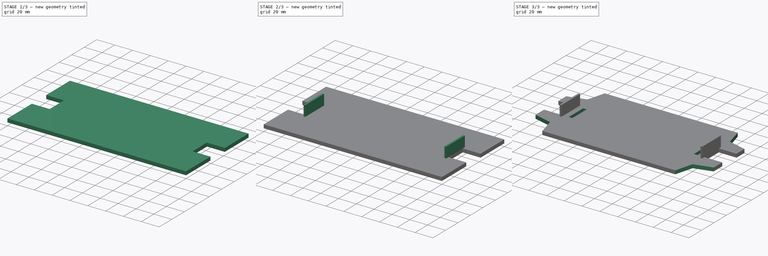
[diagram: build sequence overview — one tinted view per stage of 3, left to right]
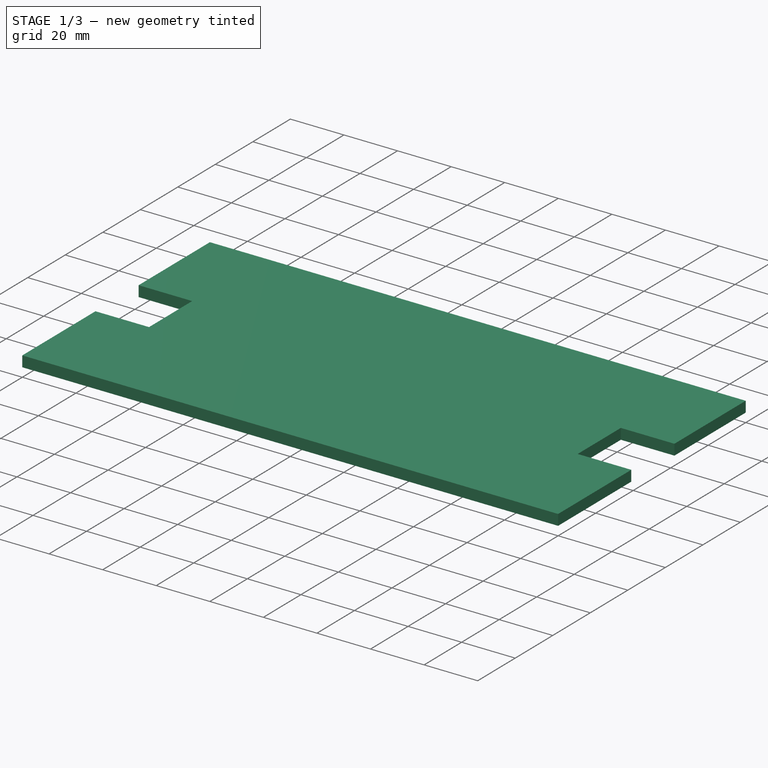
[diagram: stage 1 of 3 — iso view after this stage's code; geometry added in this stage tinted green]
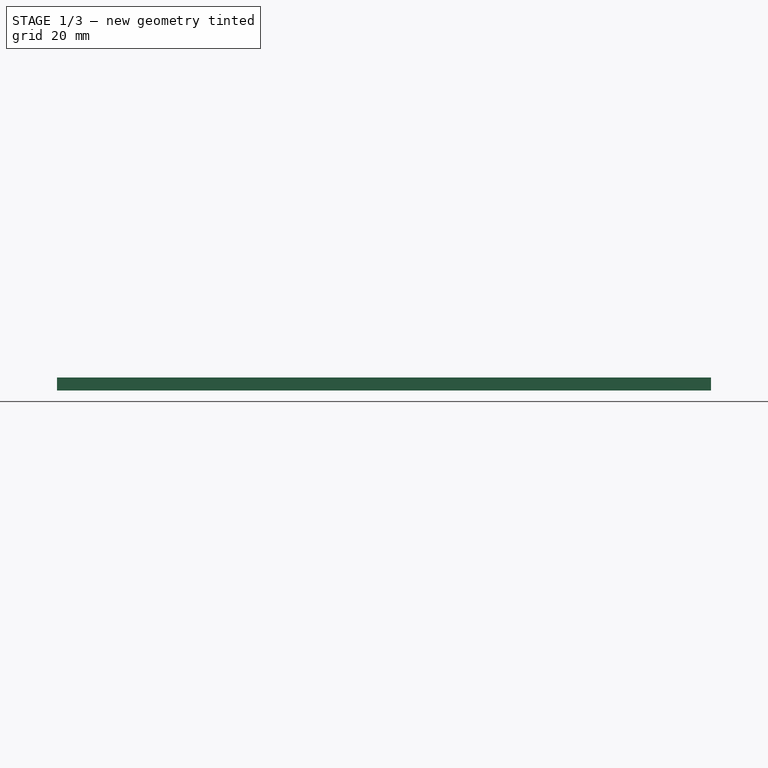
[diagram: stage 1 of 3 — front view after this stage's code; geometry added in this stage tinted green]
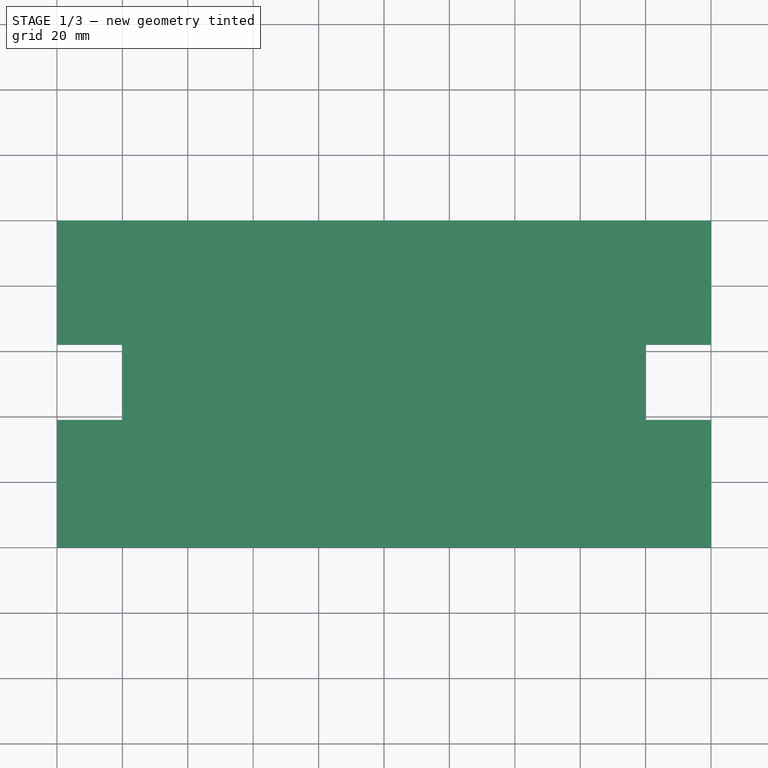
[diagram: stage 1 of 3 — top view after this stage's code; geometry added in this stage tinted green]
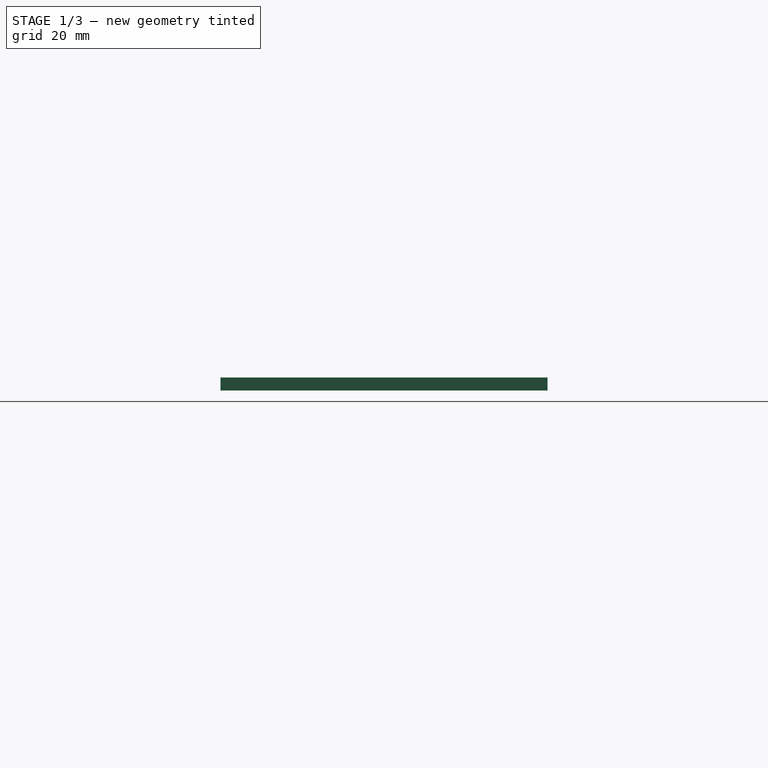
[diagram: stage 1 of 3 — right view after this stage's code; geometry added in this stage tinted green]
FCSTD DOCUMENT  (FreeCAD 0.19R24291 (Git))
Label: Estrcturapendulo
License: All rights reserved
LicenseURL: http://en.wikipedia.org/wiki/All_rights_reserved
objects: Sketcher::SketchObject×14, PartDesign::Plane×6, PartDesign::Pocket×5, App::MeasureDistance×4, PartDesign::Pad×3, PartDesign::Body×1
note: 37 computed .brp shape members not serialized (recipe doc carries the construction recipe); baked Part::Feature solids carry a one-line shape summary decoded from their .brp

FEATURE [Sketcher::SketchObject] Sketch
  FullyConstrained = true
  MapMode = 5
  Support = -> [XY_Plane]
  sketch-geometry (4):
    g0: LineSegment StartX=0 StartY=0 StartZ=0 EndX=200 EndY=0 EndZ=0
    g1: LineSegment StartX=200 StartY=0 StartZ=0 EndX=200 EndY=100 EndZ=0
    g2: LineSegment StartX=200 StartY=100 StartZ=0 EndX=0 EndY=100 EndZ=0
    g3: LineSegment StartX=0 StartY=100 StartZ=0 EndX=0 EndY=0 EndZ=0
  constraints (11):
    c: Coincident(g0,g1)
    c: Coincident(g1,g2)
    c: Coincident(g2,g3)
    c: Coincident(g3,g0)
    c: Horizontal(g0)
    c: Horizontal(g2)
    c: Vertical(g1)
    c: Vertical(g3)
    c: Coincident(g0,g-1)
    c: Distance(g1) = 100
    c: Distance(g2) = 200
FEATURE [PartDesign::Pad] Pad
  Direction = (1,1,1)
  Length = 4
  Length2 = 100
  Profile = -> Sketch
  Refine = true
  Type = 0
FEATURE [PartDesign::Plane] DatumPlane
  Length = 140.811
  MapMode = 5
  Placement = pos=(0,0,0) rot=(0.57735,-0.57735,-0.57735;2.0944rad)
  ResizeMode = 0
  Support = -> [Pad]
  Width = 65.8114
FEATURE [Sketcher::SketchObject] Sketch001
  FullyConstrained = false
  MapMode = 5
  Placement = pos=(0,0,0) rot=(0.57735,-0.57735,-0.57735;2.0944rad)
  Support = -> [DatumPlane]
  sketch-geometry (4):
    g0: LineSegment StartX=-39 StartY=0 StartZ=0 EndX=-62 EndY=0 EndZ=0
    g1: LineSegment StartX=-62 StartY=0 StartZ=0 EndX=-62 EndY=21.4556 EndZ=0
    g2: LineSegment StartX=-62 StartY=21.4556 StartZ=0 EndX=-39 EndY=21.4556 EndZ=0
    g3: LineSegment StartX=-39 StartY=21.4556 StartZ=0 EndX=-39 EndY=0 EndZ=0
  constraints (11):
    c: Coincident(g0,g1)
    c: Coincident(g1,g2)
    c: Coincident(g2,g3)
    c: Coincident(g3,g0)
    c: Horizontal(g0)
    c: Horizontal(g2)
    c: Vertical(g1)
    c: Vertical(g3)
    c: PointOnObject(g0,g-1)
    c: DistanceX(g0,g-1) = 39
    c: DistanceX(g2,g2) = 23
FEATURE [PartDesign::Pocket] Pocket
  BaseFeature = -> Pad
  Length = 20
  Length2 = 100
  Profile = -> Sketch001
  Refine = true
  Type = 0
FEATURE [PartDesign::Plane] DatumPlane001
  Length = 140.811
  MapMode = 5
  Placement = pos=(200,0,0) rot=(0.57735,0.57735,0.57735;2.0944rad)
  ResizeMode = 0
  Support = -> [Pocket]
  Width = 65.8114
FEATURE [Sketcher::SketchObject] Sketch002
  FullyConstrained = false
  MapMode = 5
  Placement = pos=(200,0,0) rot=(0.57735,0.57735,0.57735;2.0944rad)
  Support = -> [DatumPlane001]
  sketch-geometry (4):
    g0: LineSegment StartX=39 StartY=0 StartZ=0 EndX=62 EndY=0 EndZ=0
    g1: LineSegment StartX=62 StartY=0 StartZ=0 EndX=62 EndY=19.8713 EndZ=0
    g2: LineSegment StartX=62 StartY=19.8713 StartZ=0 EndX=39 EndY=19.8713 EndZ=0
    g3: LineSegment StartX=39 StartY=19.8713 StartZ=0 EndX=39 EndY=0 EndZ=0
  constraints (11):
    c: Coincident(g0,g1)
    c: Coincident(g1,g2)
    c: Coincident(g2,g3)
    c: Coincident(g3,g0)
    c: Horizontal(g0)
    c: Horizontal(g2)
    c: Vertical(g1)
    c: Vertical(g3)
    c: PointOnObject(g0,g-1)
    c: DistanceX(g-1,g0) = 39
    c: DistanceX(g2,g2) = 23
FEATURE [PartDesign::Pocket] Pocket001
  BaseFeature = -> Pocket
  Length = 20
  Length2 = 100
  Profile = -> Sketch002
  Refine = true
  Type = 0
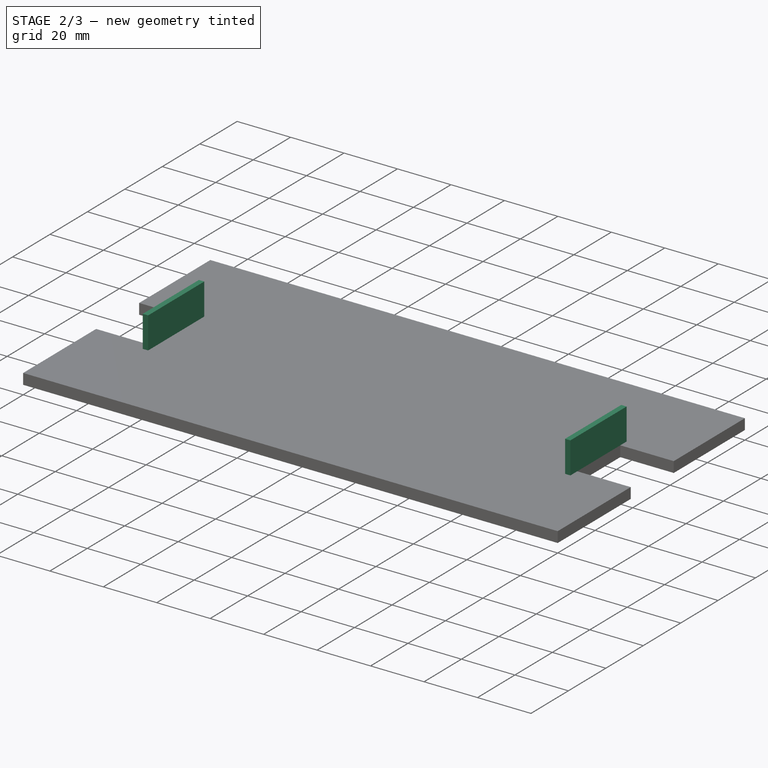
[diagram: stage 2 of 3 — iso view after this stage's code; geometry added in this stage tinted green]
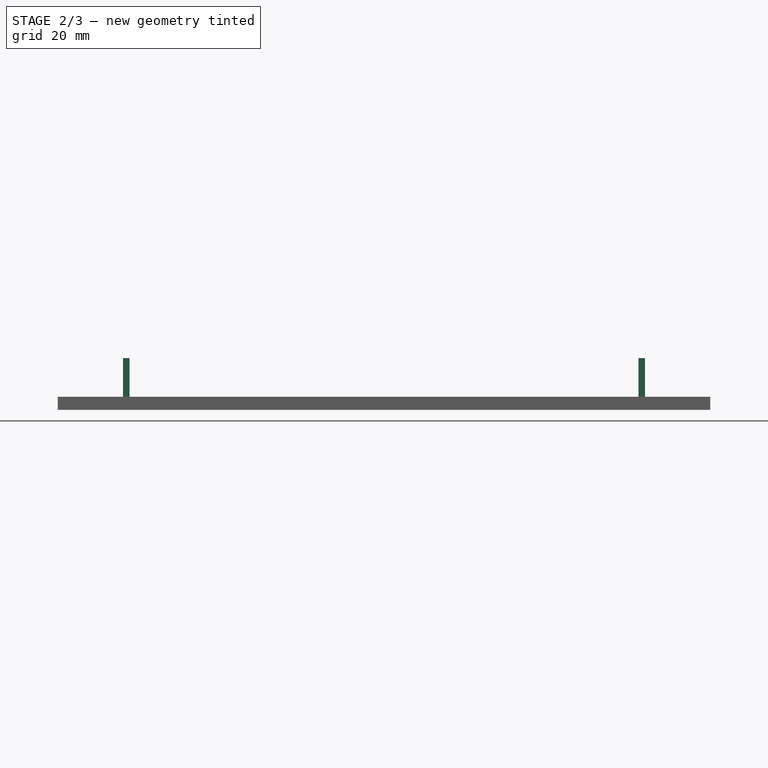
[diagram: stage 2 of 3 — front view after this stage's code; geometry added in this stage tinted green]
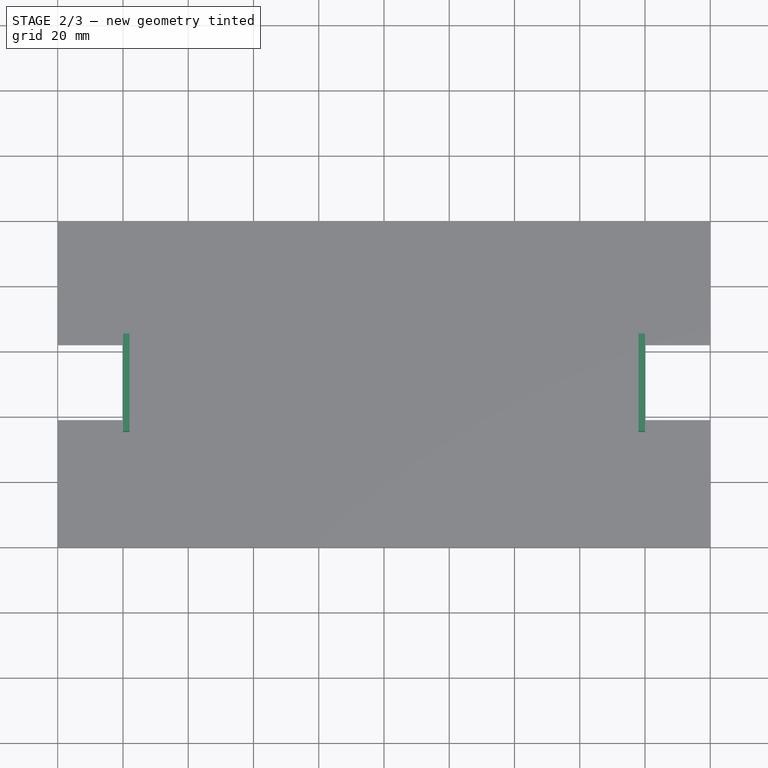
[diagram: stage 2 of 3 — top view after this stage's code; geometry added in this stage tinted green]
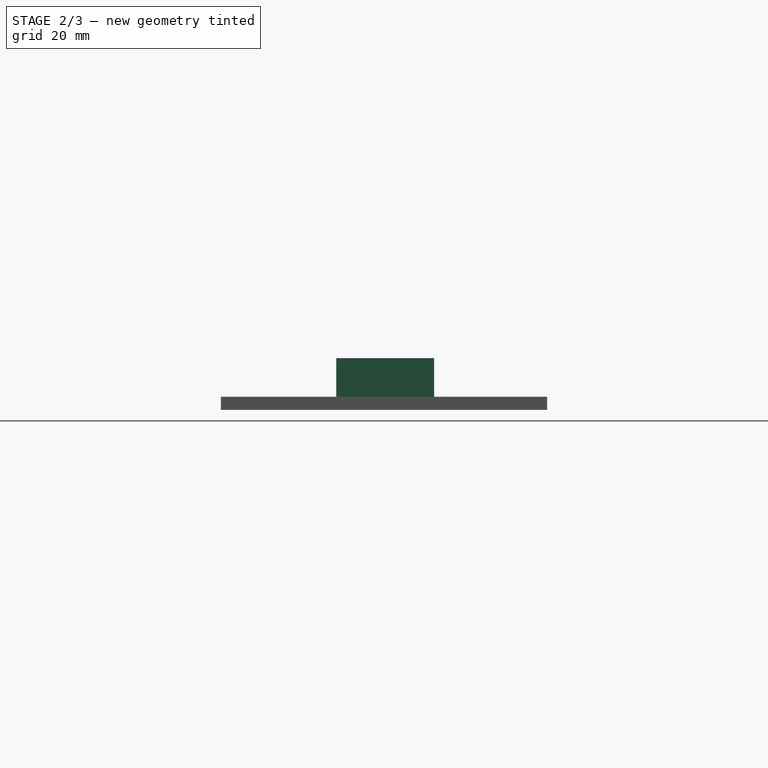
[diagram: stage 2 of 3 — right view after this stage's code; geometry added in this stage tinted green]
FEATURE [Sketcher::SketchObject] Sketch003
  FullyConstrained = false
  MapMode = 5
  Placement = pos=(180,0,0) rot=(0.57735,0.57735,0.57735;2.0944rad)
  sketch-geometry (4):
    g0: LineSegment StartX=38.9994 StartY=0 StartZ=0 EndX=62.1269 EndY=0 EndZ=0
    g1: LineSegment StartX=62.1269 StartY=0 StartZ=0 EndX=62.1269 EndY=11.3604 EndZ=0
    g2: LineSegment StartX=62.1269 StartY=11.3604 StartZ=0 EndX=38.9994 EndY=11.3604 EndZ=0
    g3: LineSegment StartX=38.9994 StartY=11.3604 StartZ=0 EndX=38.9994 EndY=0 EndZ=0
  constraints (10):
    c: Coincident(g0,g1)
    c: Coincident(g1,g2)
    c: Coincident(g2,g3)
    c: Coincident(g3,g0)
    c: Horizontal(g0)
    c: Horizontal(g2)
    c: Vertical(g1)
    c: Vertical(g3)
    c: PointOnObject(g0,g-1)
    c: DistanceX(g2,g2) = 23.1276
FEATURE [Sketcher::SketchObject] Sketch004
  FullyConstrained = true
  MapMode = 5
  Placement = pos=(180,0,0) rot=(0.57735,0.57735,0.57735;2.0944rad)
FEATURE [PartDesign::Plane] DatumPlane002
  Length = 140.811
  MapMode = 5
  Placement = pos=(180,0,0) rot=(0.57735,0.57735,0.57735;2.0944rad)
  ResizeMode = 0
  Support = -> [Pocket001]
  Width = 65.8114
FEATURE [Sketcher::SketchObject] Sketch005
  FullyConstrained = false
  MapMode = 5
  Placement = pos=(180,0,0) rot=(0.57735,0.57735,0.57735;2.0944rad)
  Support = -> [DatumPlane002]
  sketch-geometry (6):
    g0: GeomPoint X=38.8577 Y=3.99901 Z=0
    g1: GeomPoint X=61.8577 Y=3.99997 Z=0
    g2: LineSegment StartX=35.3577 StartY=3.99271 StartZ=0 EndX=65.3577 EndY=3.99271 EndZ=0
    g3: LineSegment StartX=65.3577 StartY=3.99271 StartZ=0 EndX=65.3577 EndY=15.8397 EndZ=0
    g4: LineSegment StartX=65.3577 StartY=15.8397 StartZ=0 EndX=35.3577 EndY=15.8397 EndZ=0
    g5: LineSegment StartX=35.3577 StartY=15.8397 StartZ=0 EndX=35.3577 EndY=3.99271 EndZ=0
  constraints (11):
    c: Coincident(g2,g3)
    c: Coincident(g3,g4)
    c: Coincident(g4,g5)
    c: Coincident(g5,g2)
    c: Horizontal(g2)
    c: Horizontal(g4)
    c: Vertical(g3)
    c: Vertical(g5)
    c: DistanceX(g4,g4) = 30
    c: DistanceX(g2,g0) = 3.5
    c: DistanceX(g1,g2) = 3.5
FEATURE [Sketcher::SketchObject] Sketch006
  FullyConstrained = true
  MapMode = 5
  Placement = pos=(180,0,0) rot=(0.57735,0.57735,0.57735;2.0944rad)
  Support = -> [DatumPlane002]
FEATURE [PartDesign::Pad] Pad001
  BaseFeature = -> Pocket001
  Direction = (1,1,1)
  Length = 2
  Length2 = 100
  Profile = -> Sketch005
  Refine = true
  Reversed = true
  Type = 0
FEATURE [PartDesign::Plane] DatumPlane003
  Length = 140.811
  MapMode = 5
  Placement = pos=(20,0,0) rot=(0.57735,-0.57735,-0.57735;2.0944rad)
  ResizeMode = 0
  Support = -> [Pad001]
  Width = 65.8114
FEATURE [Sketcher::SketchObject] Sketch007
  FullyConstrained = false
  MapMode = 5
  Placement = pos=(20,0,0) rot=(0.57735,-0.57735,-0.57735;2.0944rad)
  Support = -> [DatumPlane003]
  sketch-geometry (6):
    g0: GeomPoint X=-61.8577 Y=3.99983 Z=0
    g1: GeomPoint X=-38.8577 Y=3.99997 Z=0
    g2: LineSegment StartX=-65.3577 StartY=4 StartZ=0 EndX=-35.3577 EndY=4 EndZ=0
    g3: LineSegment StartX=-35.3577 StartY=4 StartZ=0 EndX=-35.3577 EndY=15.8397 EndZ=0
    g4: LineSegment StartX=-35.3577 StartY=15.8397 StartZ=0 EndX=-65.3577 EndY=15.8397 EndZ=0
    g5: LineSegment StartX=-65.3577 StartY=15.8397 StartZ=0 EndX=-65.3577 EndY=4 EndZ=0
  constraints (11):
    c: Coincident(g2,g3)
    c: Coincident(g3,g4)
    c: Coincident(g4,g5)
    c: Coincident(g5,g2)
    c: Horizontal(g2)
    c: Horizontal(g4)
    c: Vertical(g3)
    c: Vertical(g5)
    c: DistanceX(g4,g4) = 30
    c: DistanceX(g2,g0) = 3.5
    c: DistanceX(g1,g2) = 3.5
FEATURE [PartDesign::Pad] Pad002
  BaseFeature = -> Pad001
  Direction = (1,1,1)
  Length = 2
  Length2 = 100
  Profile = -> Sketch007
  Refine = true
  Reversed = true
  Type = 0
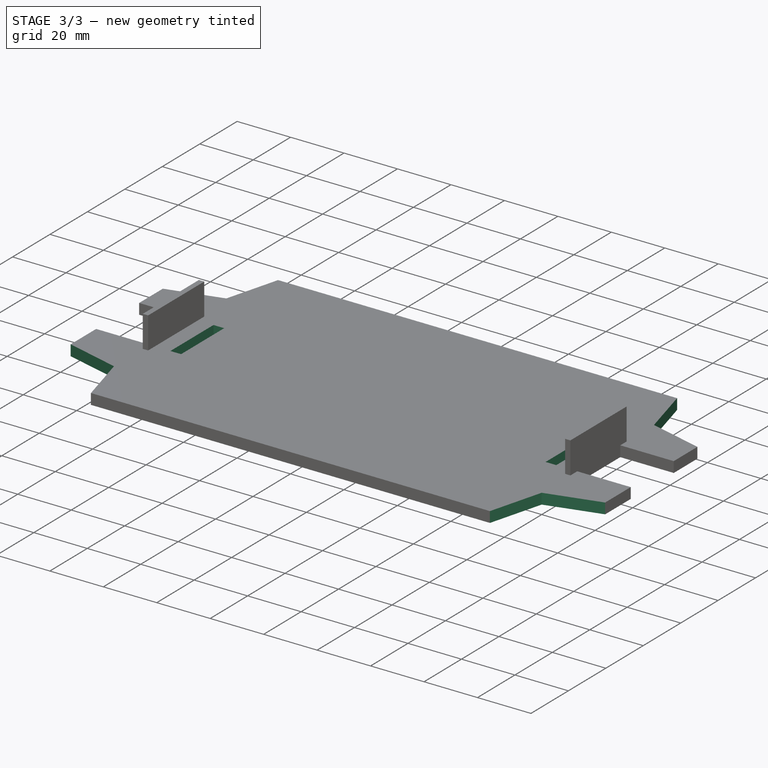
[diagram: stage 3 of 3 — iso view after this stage's code; geometry added in this stage tinted green]
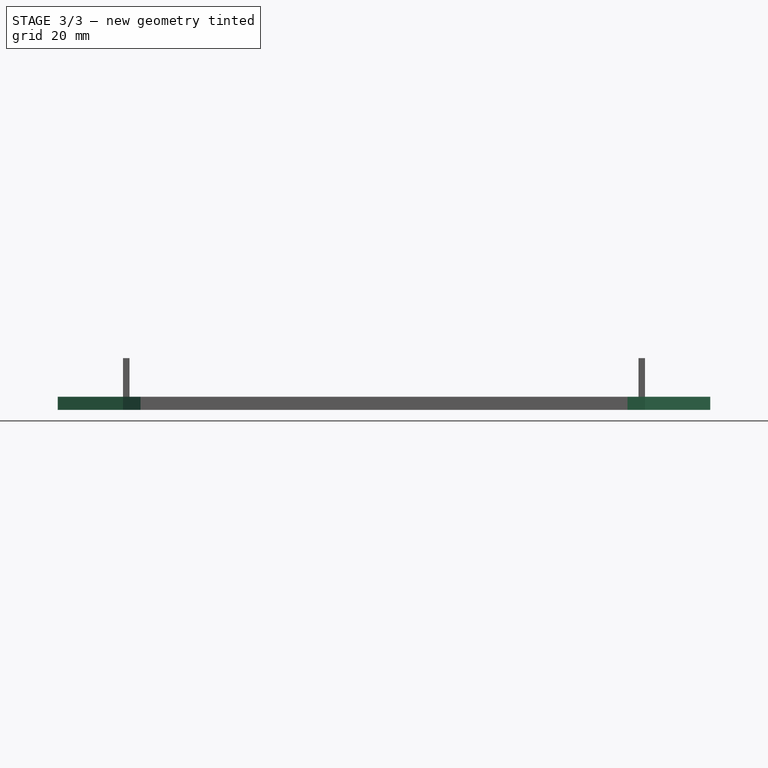
[diagram: stage 3 of 3 — front view after this stage's code; geometry added in this stage tinted green]
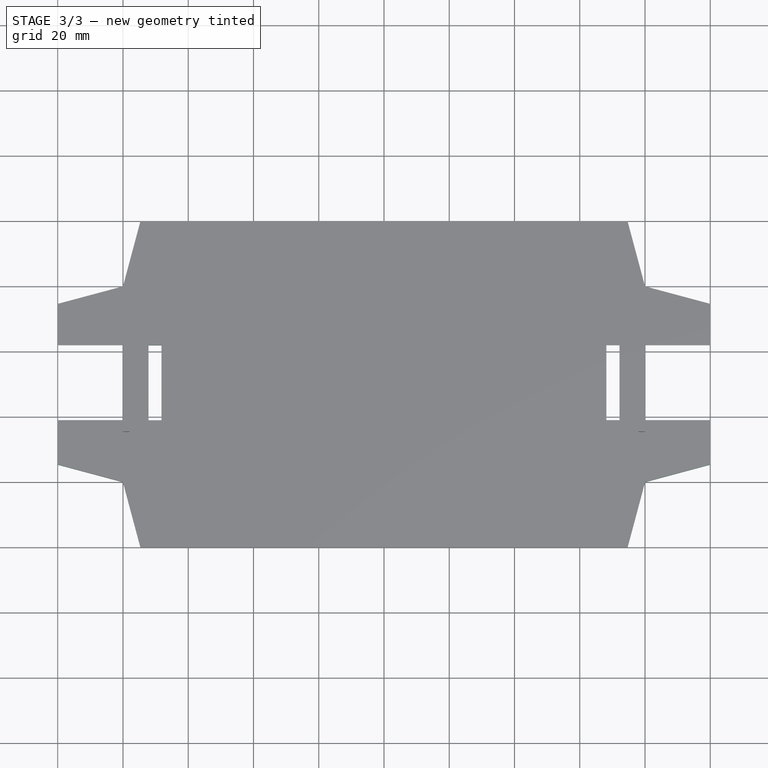
[diagram: stage 3 of 3 — top view after this stage's code; geometry added in this stage tinted green]
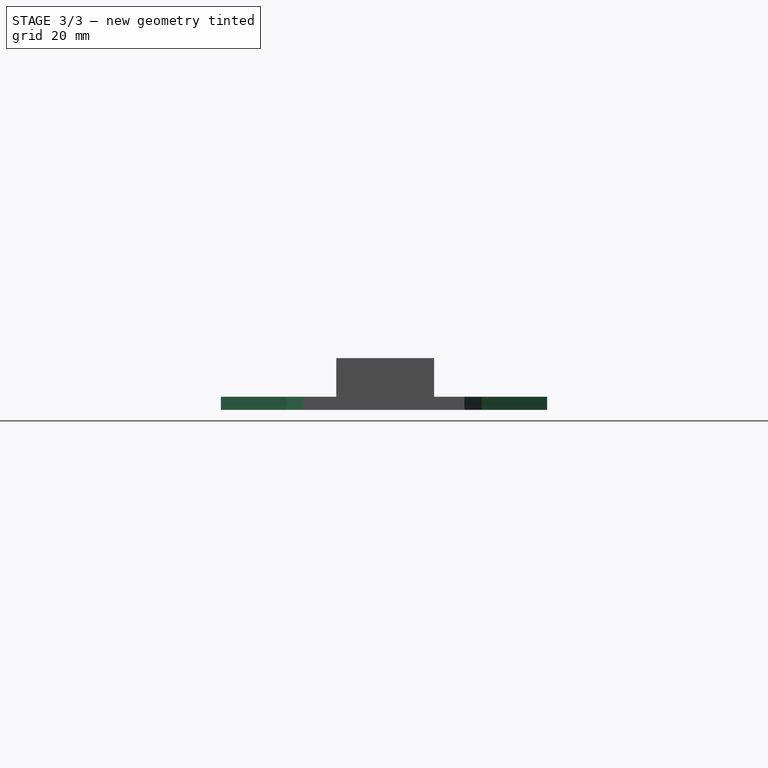
[diagram: stage 3 of 3 — right view after this stage's code; geometry added in this stage tinted green]
FEATURE [PartDesign::Plane] DatumPlane004
  Length = 258.541
  MapMode = 5
  Placement = pos=(0,0,4) rot=(0,0,1;0rad)
  ResizeMode = 0
  Support = -> [Pad002]
  Width = 158.541
FEATURE [Sketcher::SketchObject] Sketch008
  FullyConstrained = true
  MapMode = 5
  Placement = pos=(0,0,4) rot=(0,0,1;0rad)
  Support = -> [DatumPlane004]
FEATURE [App::MeasureDistance] Distance  label="Distance: 156,05 mm"
  Distance = 156.052
  P1 = (22,35.3577,12.5305)
  P2 = (178.048,35.3577,11.3701)
FEATURE [PartDesign::Plane] DatumPlane005
  Length = 258.541
  MapMode = 5
  Placement = pos=(0,0,0) rot=(1,0,0;3.14159rad)
  ResizeMode = 0
  Support = -> [Pad002]
  Width = 158.541
FEATURE [Sketcher::SketchObject] Sketch009
  FullyConstrained = false
  MapMode = 5
  Placement = pos=(0,0,0) rot=(1,0,0;3.14159rad)
  Support = -> [DatumPlane005]
  sketch-geometry (5):
    g0: LineSegment StartX=20.0192 StartY=-50.4575 StartZ=0 EndX=38.3263 EndY=-50.4575 EndZ=0
    g1: LineSegment StartX=27.8263 StartY=-61.9575 StartZ=0 EndX=31.8263 EndY=-61.9575 EndZ=0
    g2: LineSegment StartX=31.8263 StartY=-61.9575 StartZ=0 EndX=31.8263 EndY=-38.9575 EndZ=0
    g3: LineSegment StartX=31.8263 StartY=-38.9575 StartZ=0 EndX=27.8263 EndY=-38.9575 EndZ=0
    g4: LineSegment StartX=27.8263 StartY=-38.9575 StartZ=0 EndX=27.8263 EndY=-61.9575 EndZ=0
  constraints (12):
    c: Horizontal(g0)
    c: Coincident(g1,g2)
    c: Coincident(g2,g3)
    c: Coincident(g3,g4)
    c: Coincident(g4,g1)
    c: Horizontal(g1)
    c: Horizontal(g3)
    c: Vertical(g2)
    c: DistanceX(g3,g3) = 4
    c: DistanceY(g2,g2) = 23
    c: Symmetric(g3,g1,g0)
    c: DistanceX(g2,g0) = 6.5
FEATURE [PartDesign::Pocket] Pocket002
  BaseFeature = -> Pad002
  Length = 5
  Length2 = 100
  Profile = -> Sketch009
  Refine = true
  Type = 0
FEATURE [Sketcher::SketchObject] Sketch010
  FullyConstrained = true
  MapMode = 5
  Placement = pos=(0,0,0) rot=(1,0,0;3.14159rad)
  Support = -> [DatumPlane005]
FEATURE [App::MeasureDistance] Distance001  label="Distance: 7,83 mm"
  Distance = 7.82598
  P1 = (20.0005,62.0022,0)
  P2 = (27.8264,61.9578,0)
FEATURE [Sketcher::SketchObject] Sketch011
  FullyConstrained = false
  MapMode = 5
  Placement = pos=(0,0,0) rot=(1,0,0;3.14159rad)
  Support = -> [DatumPlane005]
  sketch-geometry (5):
    g0: LineSegment StartX=180 StartY=-62 StartZ=0 EndX=172.17 EndY=-62 EndZ=0
    g1: LineSegment StartX=172.17 StartY=-62 StartZ=0 EndX=168.17 EndY=-62 EndZ=0
    g2: LineSegment StartX=168.17 StartY=-62 StartZ=0 EndX=168.17 EndY=-39 EndZ=0
    g3: LineSegment StartX=168.17 StartY=-39 StartZ=0 EndX=172.17 EndY=-39 EndZ=0
    g4: LineSegment StartX=172.17 StartY=-39 StartZ=0 EndX=172.17 EndY=-62 EndZ=0
  constraints (13):
    c: Horizontal(g0)
    c: DistanceX(g0,g0) = 7.83
    c: Coincident(g1,g2)
    c: Coincident(g2,g3)
    c: Coincident(g3,g4)
    c: Coincident(g4,g1)
    c: Horizontal(g1)
    c: Horizontal(g3)
    c: Vertical(g2)
    c: Vertical(g4)
    c: Coincident(g1,g0)
    c: DistanceY(g4,g4) = 23
    c: DistanceX(g1,g1) = 4
FEATURE [PartDesign::Pocket] Pocket003
  BaseFeature = -> Pocket002
  Length = 5
  Length2 = 100
  Profile = -> Sketch011
  Refine = true
  Type = 0
FEATURE [Sketcher::SketchObject] Sketch012
  FullyConstrained = false
  MapMode = 5
  Placement = pos=(0,0,0) rot=(1,0,0;3.14159rad)
  Support = -> [DatumPlane005]
  sketch-geometry (28):
    g0: LineSegment StartX=20 StartY=-20 StartZ=0 EndX=27.3205 EndY=7.32049 EndZ=0
    g1: LineSegment StartX=27.3205 StartY=7.32049 StartZ=0 EndX=7.32051 EndY=27.3205 EndZ=0
    g2: LineSegment StartX=7.32051 StartY=27.3205 StartZ=0 EndX=-20 EndY=20 EndZ=0
    g3: LineSegment StartX=-20 StartY=20 StartZ=0 EndX=-27.3205 EndY=-7.32049 EndZ=0
    g4: LineSegment StartX=-27.3205 StartY=-7.32049 StartZ=0 EndX=-7.32051 EndY=-27.3205 EndZ=0
    g5: LineSegment StartX=-7.32051 StartY=-27.3205 StartZ=0 EndX=20 EndY=-20 EndZ=0
    g6: Circle CenterX=0 CenterY=0 CenterZ=0 NormalX=0 NormalY=0 NormalZ=1 AngleXU=0 Radius=28.2843
    g7: LineSegment StartX=20 StartY=-80 StartZ=0 EndX=-7.32383 EndY=-72.6805 EndZ=0
    g8: LineSegment StartX=-7.32383 StartY=-72.6805 StartZ=0 EndX=-27.3246 EndY=-92.6839 EndZ=0
    g9: LineSegment StartX=-27.3246 StartY=-92.6839 StartZ=0 EndX=-20.0016 EndY=-120.007 EndZ=0
    g10: LineSegment StartX=-20.0016 StartY=-120.007 StartZ=0 EndX=7.32226 EndY=-127.326 EndZ=0
    g11: LineSegment StartX=7.32226 StartY=-127.326 StartZ=0 EndX=27.323 EndY=-107.323 EndZ=0
    g12: LineSegment StartX=27.323 StartY=-107.323 StartZ=0 EndX=20 EndY=-80 EndZ=0
    g13: Circle CenterX=-0.000787 CenterY=-100.003 CenterZ=0 NormalX=0 NormalY=0 NormalZ=1 AngleXU=0 Radius=28.2872
    g14: LineSegment StartX=180 StartY=-20.0001 StartZ=0 EndX=207.301 EndY=-27.3206 EndZ=0
    g15: LineSegment StartX=207.301 StartY=-27.3206 StartZ=0 EndX=227.291 EndY=-7.33763 EndZ=0
    g16: LineSegment StartX=227.291 StartY=-7.33763 StartZ=0 EndX=219.98 EndY=19.9658 EndZ=0
    g17: LineSegment StartX=219.98 StartY=19.9658 StartZ=0 EndX=192.68 EndY=27.2863 EndZ=0
    g18: LineSegment StartX=192.68 StartY=27.2863 StartZ=0 EndX=172.689 EndY=7.30336 EndZ=0
    g19: LineSegment StartX=172.689 StartY=7.30336 StartZ=0 EndX=180 EndY=-20.0001 EndZ=0
    g20: Circle CenterX=199.99 CenterY=-0.017136 CenterZ=0 NormalX=0 NormalY=0 NormalZ=1 AngleXU=0 Radius=28.2652
    g21: LineSegment StartX=180 StartY=-80 StartZ=0 EndX=172.68 EndY=-107.321 EndZ=0
    g22: LineSegment StartX=172.68 StartY=-107.321 StartZ=0 EndX=192.68 EndY=-127.321 EndZ=0
    g23: LineSegment StartX=192.68 StartY=-127.321 StartZ=0 EndX=220 EndY=-120 EndZ=0
    g24: LineSegment StartX=220 StartY=-120 StartZ=0 EndX=227.321 EndY=-92.6795 EndZ=0
    g25: LineSegment StartX=227.321 StartY=-92.6795 StartZ=0 EndX=207.321 EndY=-72.6795 EndZ=0
    g26: LineSegment StartX=207.321 StartY=-72.6795 StartZ=0 EndX=180 EndY=-80 EndZ=0
    g27: Circle CenterX=200 CenterY=-100 CenterZ=0 NormalX=0 NormalY=0 NormalZ=1 AngleXU=0 Radius=28.2843
  constraints (52):
    c: Coincident(g0,g1)
    c: Coincident(g1,g2)
    c: Coincident(g2,g3)
    c: Coincident(g3,g4)
    c: Coincident(g4,g5)
    c: Coincident(g5,g0)
    c: Equal(g0, g1-g5) x5
    c: PointOnObject(g0,g6)
    c: PointOnObject(g1,g6)
    c: PointOnObject(g2,g6)
    c: PointOnObject(g3,g6)
    c: PointOnObject(g4,g6)
    c: PointOnObject(g5,g6)
    c: Coincident(g7,g8)
    c: Coincident(g8,g9)
    c: Coincident(g9,g10)
    c: Coincident(g10,g11)
    c: Coincident(g11,g12)
    c: Coincident(g12,g7)
    c: Equal(g7, g8-g12) x5
    c: PointOnObject(g7,g13)
    c: PointOnObject(g8,g13)
    c: PointOnObject(g9,g13)
    c: PointOnObject(g10,g13)
    c: PointOnObject(g11,g13)
    c: PointOnObject(g12,g13)
    c: Coincident(g14,g15)
    c: Coincident(g15,g16)
    c: Coincident(g16,g17)
    c: Coincident(g17,g18)
    c: Coincident(g18,g19)
    c: Coincident(g19,g14)
    c: Equal(g14, g15-g19) x5
    c: PointOnObject(g14,g20)
    c: PointOnObject(g15,g20)
    c: PointOnObject(g16,g20)
    c: PointOnObject(g17,g20)
    c: PointOnObject(g18,g20)
    c: PointOnObject(g19,g20)
    c: Coincident(g21,g22)
    c: Coincident(g22,g23)
    c: Coincident(g23,g24)
    c: Coincident(g24,g25)
    c: Coincident(g25,g26)
    c: Coincident(g26,g21)
    c: Equal(g21, g22-g26) x5
    c: PointOnObject(g21,g27)
    c: PointOnObject(g22,g27)
    c: PointOnObject(g23,g27)
    c: PointOnObject(g24,g27)
    c: PointOnObject(g25,g27)
    c: PointOnObject(g26,g27)
FEATURE [PartDesign::Pocket] Pocket004
  BaseFeature = -> Pocket003
  Length = 5
  Length2 = 100
  Profile = -> Sketch012
  Refine = true
  Type = 0
FEATURE [App::MeasureDistance] Distance002  label="Distance: 100,00 mm"
  Distance = 100
  P1 = (25.3604,100,4)
  P2 = (25.359,0,4)
FEATURE [Sketcher::SketchObject] Sketch013
  FullyConstrained = false
  MapMode = 5
  Placement = pos=(0,0,4) rot=(0,0,1;0rad)
  Support = -> [DatumPlane004]
  sketch-geometry (7):
    g0: LineSegment StartX=53.5 StartY=85.5 StartZ=0 EndX=146.5 EndY=85.5 EndZ=0
    g1: LineSegment StartX=146.5 StartY=85.5 StartZ=0 EndX=146.5 EndY=14.5 EndZ=0
    g2: LineSegment StartX=146.5 StartY=14.5 StartZ=0 EndX=53.5 EndY=14.5 EndZ=0
    g3: LineSegment StartX=53.5 StartY=14.5 StartZ=0 EndX=53.5 EndY=85.5 EndZ=0
    g4: GeomPoint X=31.8263 Y=38.9575 Z=0
    g5: GeomPoint X=168.17 Y=39 Z=0
    g6: GeomPoint X=174.641 Y=100 Z=0
  constraints (12):
    c: Coincident(g0,g1)
    c: Coincident(g1,g2)
    c: Coincident(g2,g3)
    c: Coincident(g3,g0)
    c: Horizontal(g0)
    c: Horizontal(g2)
    c: Vertical(g1)
    c: Vertical(g3)
    c: DistanceX(g0,g0) = 93
    c: DistanceY(g1,g1) = 71
    c: Distance(g5,g1) = 21.67
    c: Distance(g6,g0) = 14.5
FEATURE [PartDesign::Body] Body
  Group = -> [Sketch,Pad,DatumPlane,Sketch001,Pocket,DatumPlane001,Sketch002,Pocket001,Sketch003,Sketch004,DatumPlane002,Sketch005,Sketch006,Pad001,DatumPlane003,Sketch007,Pad002,DatumPlane004,Sketch008,DatumPlane005,Sketch009,Pocket002,Sketch010,Sketch011,Pocket003,Sketch012,Pocket004,Sketch013]
  Origin = -> Origin
  Tip = -> Pocket004
FEATURE [App::MeasureDistance] Distance003  label="Distance: 136,34 mm"
  Distance = 136.344
  P1 = (31.8263,38.9575,4)
  P2 = (168.17,39,4)
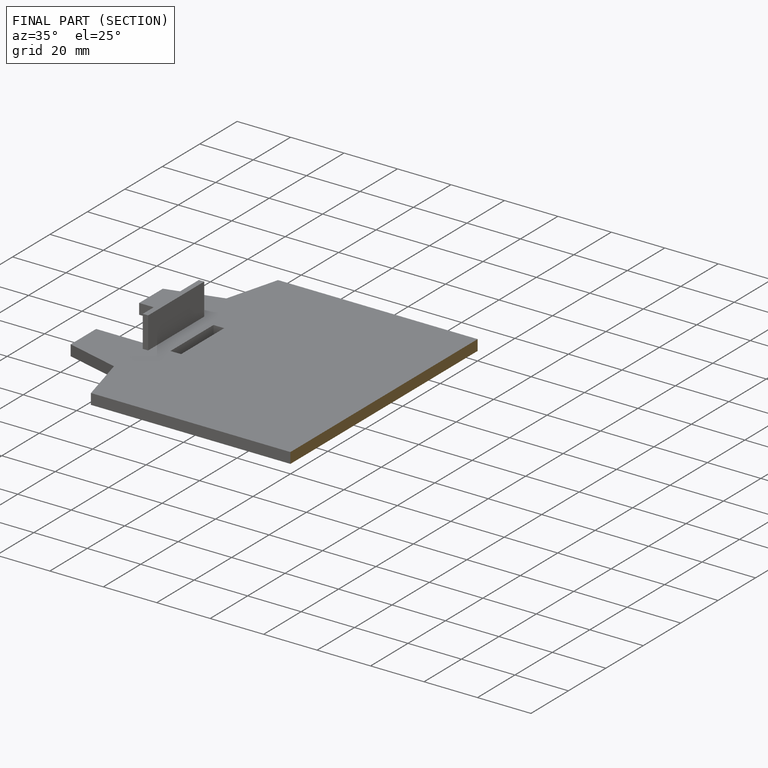
[diagram: finished part — half-section view (interior)]
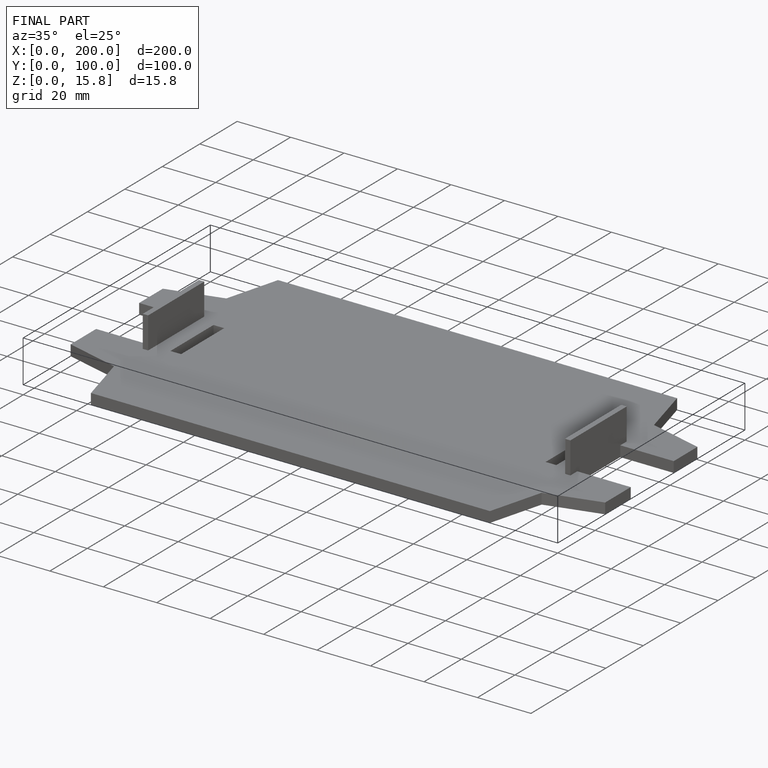
[diagram: finished part — iso view with bounding-box wireframe]
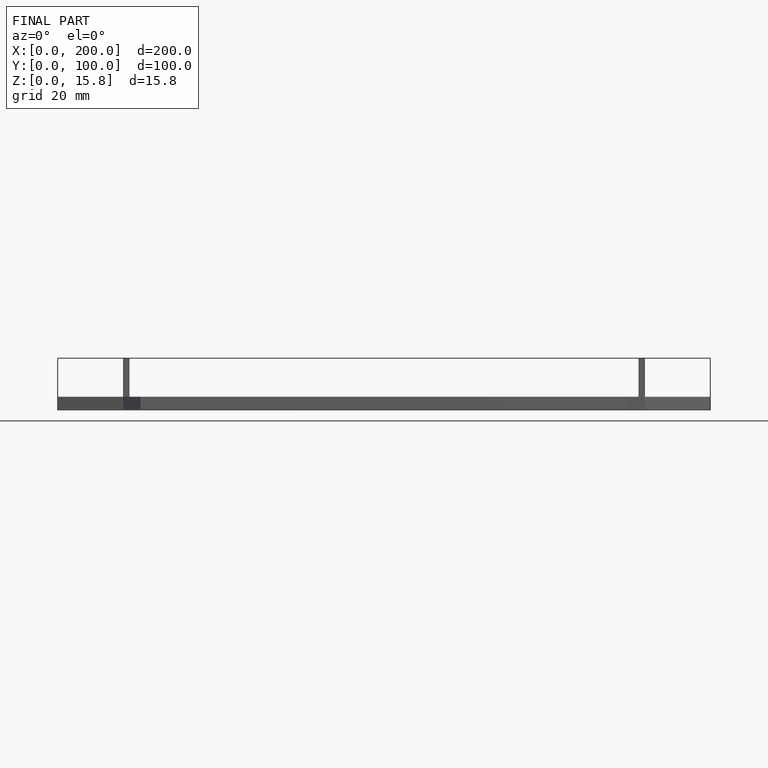
[diagram: finished part — front view with bounding-box wireframe]
